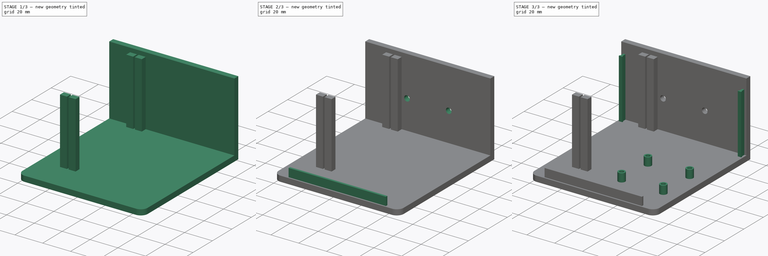
[diagram: build sequence overview — one tinted view per stage of 3, left to right]
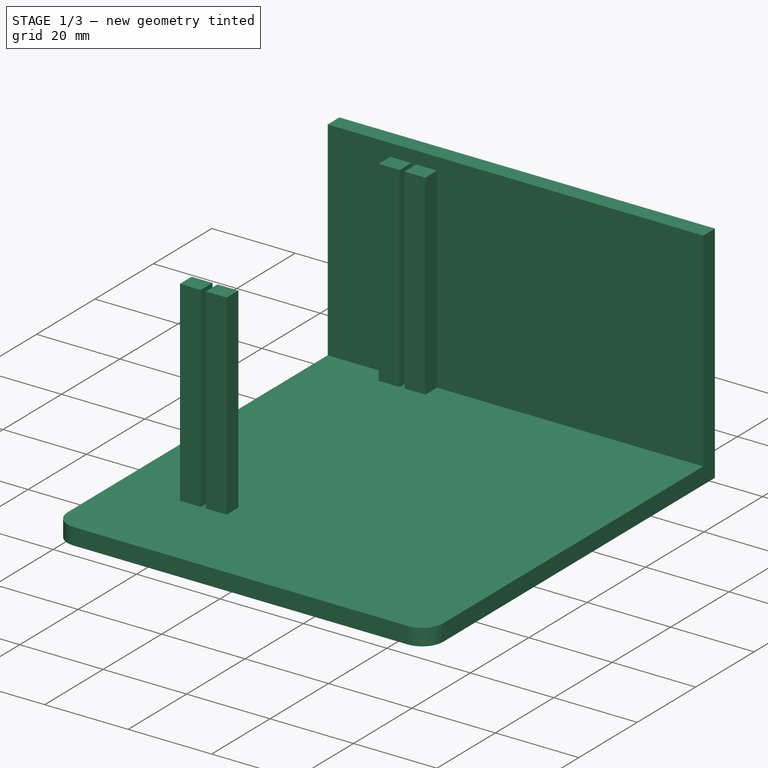
[diagram: stage 1 of 3 — iso view after this stage's code; geometry added in this stage tinted green]
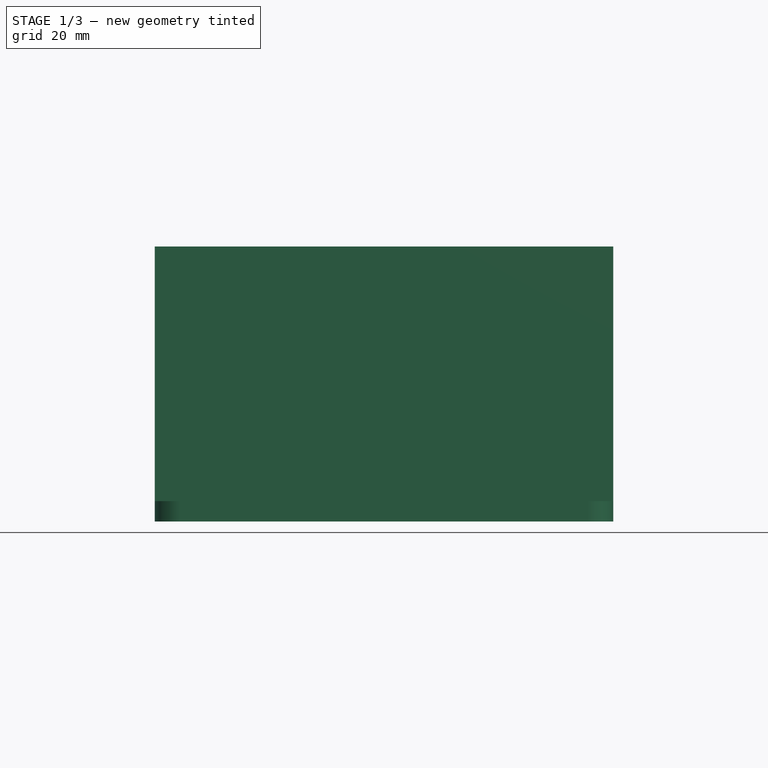
[diagram: stage 1 of 3 — front view after this stage's code; geometry added in this stage tinted green]
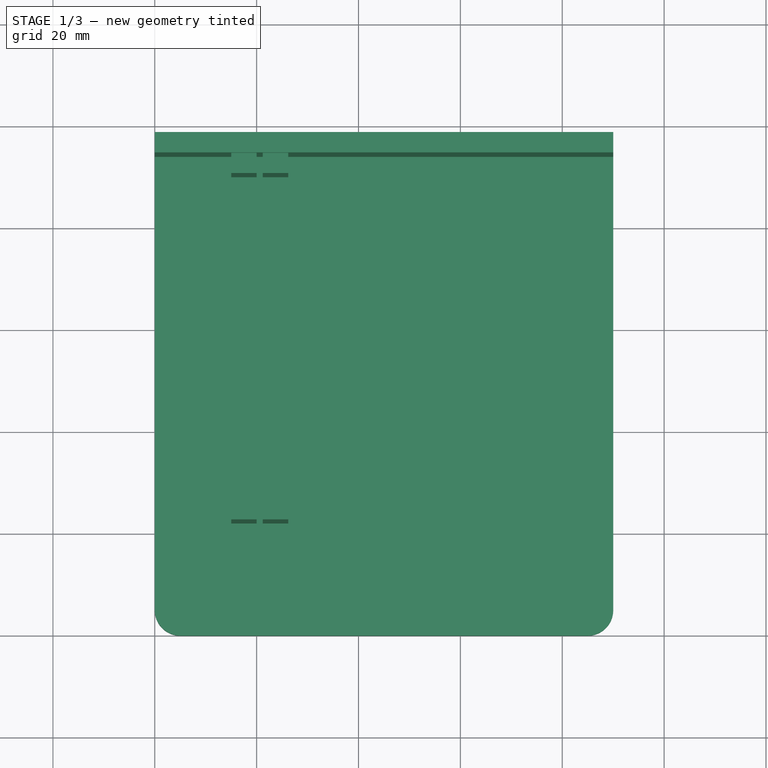
[diagram: stage 1 of 3 — top view after this stage's code; geometry added in this stage tinted green]
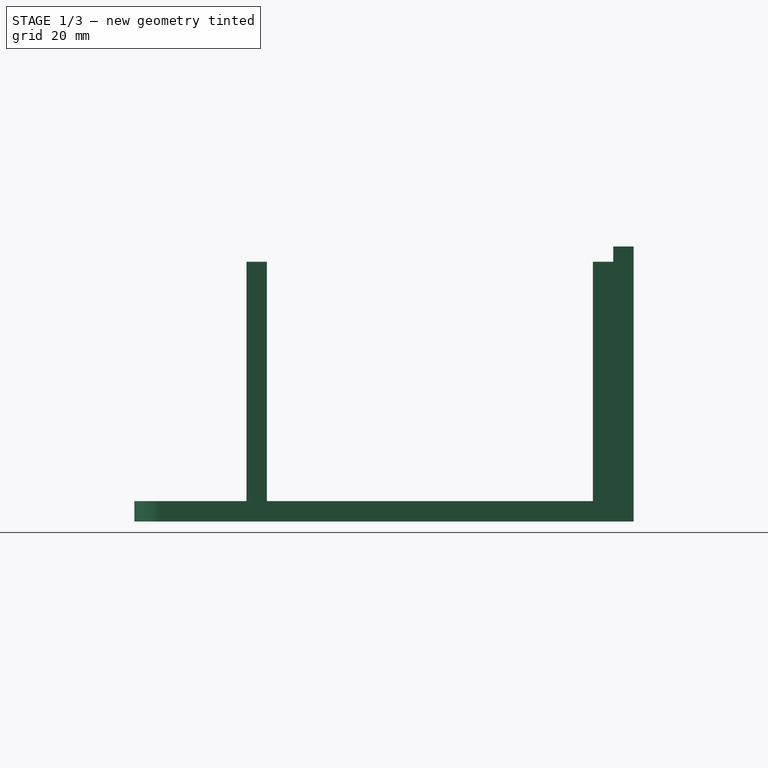
[diagram: stage 1 of 3 — right view after this stage's code; geometry added in this stage tinted green]
FCSTD DOCUMENT  (FreeCAD 1.0R38641 +468 (Git))
Label: focuser-box-base
License: All rights reserved
LicenseURL: https://en.wikipedia.org/wiki/All_rights_reserved
objects: Sketcher::SketchObject×8, PartDesign::Pad×6, PartDesign::Pocket×2, PartDesign::Body×1
note: 41 computed .brp shape members not serialized (recipe doc carries the construction recipe); baked Part::Feature solids carry a one-line shape summary decoded from their .brp

FEATURE [Sketcher::SketchObject] Sketch001  label="fb-base"
  ArcFitTolerance = 1e-06
  AttachmentSupport = -> [XY_Plane001]
  FullyConstrained = true
  MakeInternals = false
  MapMode = 5
  sketch-geometry (8):
    g0: LineSegment StartX=8.53e-14 StartY=94 StartZ=0 EndX=8.53e-14 EndY=5 EndZ=0
    g1: LineSegment StartX=5 StartY=8e-15 StartZ=0 EndX=85 EndY=8e-15 EndZ=0
    g2: LineSegment StartX=90 StartY=5 StartZ=0 EndX=90 EndY=94 EndZ=0
    g3: LineSegment StartX=90 StartY=94 StartZ=0 EndX=8.53e-14 EndY=94 EndZ=0
    g4: ArcOfCircle CenterX=5 CenterY=5 CenterZ=0 NormalX=0 NormalY=0 NormalZ=1 AngleXU=0 Radius=5 StartAngle=3.14159 EndAngle=4.71239
    g5: GeomPoint [constr] X=0 Y=-3.5e-15 Z=0
    g6: ArcOfCircle CenterX=85 CenterY=5 CenterZ=0 NormalX=0 NormalY=0 NormalZ=1 AngleXU=0 Radius=5 StartAngle=4.71239 EndAngle=6.28319
    g7: GeomPoint [constr] X=90 Y=-3.5e-15 Z=0
  constraints (20):
    c: Coincident(g2,g3)
    c: Coincident(g3,g0)
    c: Vertical(g0)
    c: Vertical(g2)
    c: Horizontal(g1)
    c: Horizontal(g3)
    c: Distance(g0,g2) = 90
    c: Distance(g5,g3) = 94
    c: PointOnObject(g5,g0)
    c: PointOnObject(g5,g1)
    c: Tangent(g0,g4) = -1.5708
    c: Tangent(g1,g4) = -1.5708
    c: PointOnObject(g7,g1)
    c: PointOnObject(g7,g2)
    c: Tangent(g1,g6) = -1.5708
    c: Tangent(g2,g6) = -1.5708
    c: DistanceX(g0,g4) = 5
    c: DistanceX(g6,g2) = 5
    c: DistanceX(g-1,g0) = 0
    c: DistanceY(g-1,g0) = 94
FEATURE [PartDesign::Pad] Pad
  Direction = (0,0,1)
  Length = 4
  Length2 = 10
  Profile = -> Sketch001
  ReferenceAxis = -> Sketch001 [N_Axis]
  Refine = true
  Suppressed = false
  Type = 0
FEATURE [Sketcher::SketchObject] Sketch002  label="fb-card-holder"
  ArcFitTolerance = 1e-06
  AttachmentSupport = -> [XY_Plane001]
  FullyConstrained = true
  MakeInternals = false
  MapMode = 5
  sketch-geometry (16):
    g0: LineSegment StartX=20 StartY=94 StartZ=0 EndX=15 EndY=94 EndZ=0
    g1: LineSegment StartX=15 StartY=94 StartZ=0 EndX=15 EndY=90 EndZ=0
    g2: LineSegment StartX=15 StartY=90 StartZ=0 EndX=20 EndY=90 EndZ=0
    g3: LineSegment StartX=20 StartY=90 StartZ=0 EndX=20 EndY=94 EndZ=0
    g4: LineSegment StartX=15 StartY=26 StartZ=0 EndX=20 EndY=26 EndZ=0
    g5: LineSegment StartX=20 StartY=26 StartZ=0 EndX=20 EndY=22 EndZ=0
    g6: LineSegment StartX=20 StartY=22 StartZ=0 EndX=15 EndY=22 EndZ=0
    g7: LineSegment StartX=15 StartY=22 StartZ=0 EndX=15 EndY=26 EndZ=0
    g8: LineSegment StartX=26.2 StartY=94 StartZ=0 EndX=21.2 EndY=94 EndZ=0
    g9: LineSegment StartX=21.2 StartY=94 StartZ=0 EndX=21.2 EndY=90 EndZ=0
    g10: LineSegment StartX=21.2 StartY=90 StartZ=0 EndX=26.2 EndY=90 EndZ=0
    g11: LineSegment StartX=26.2 StartY=90 StartZ=0 EndX=26.2 EndY=94 EndZ=0
    g12: LineSegment StartX=26.2 StartY=26 StartZ=0 EndX=21.2 EndY=26 EndZ=0
    g13: LineSegment StartX=21.2 StartY=26 StartZ=0 EndX=21.2 EndY=22 EndZ=0
    g14: LineSegment StartX=21.2 StartY=22 StartZ=0 EndX=26.2 EndY=22 EndZ=0
    g15: LineSegment StartX=26.2 StartY=22 StartZ=0 EndX=26.2 EndY=26 EndZ=0
  constraints (48):
    c: Coincident(g0,g1)
    c: Coincident(g1,g2)
    c: Coincident(g2,g3)
    c: Coincident(g3,g0)
    c: Horizontal(g0)
    c: Horizontal(g2)
    c: Vertical(g1)
    c: Vertical(g3)
    c: Distance(g1,g3) = 5
    c: Distance(g0,g2) = 4
    c: DistanceX(g-1,g1) = 15
    c: Coincident(g4,g5)
    c: Coincident(g5,g6)
    c: Coincident(g6,g7)
    c: Coincident(g7,g4)
    c: Horizontal(g4)
    c: Horizontal(g6)
    c: Vertical(g5)
    c: Vertical(g7)
    c: Distance(g5,g7) = 5
    c: Distance(g4,g6) = 4
    c: DistanceX(g6,g1) = 0
    c: DistanceY(g-1,g6) = 22
    c: Coincident(g8,g9)
    c: Coincident(g9,g10)
    c: Coincident(g10,g11)
    c: Coincident(g11,g8)
    c: Horizontal(g8)
    c: Horizontal(g10)
    c: Vertical(g9)
    c: Vertical(g11)
    c: Distance(g9,g11) = 5
    c: Distance(g8,g10) = 4
    c: Coincident(g12,g13)
    c: Coincident(g13,g14)
    c: Coincident(g14,g15)
    c: Coincident(g15,g12)
    c: Horizontal(g12)
    c: Horizontal(g14)
    c: Vertical(g13)
    c: Vertical(g15)
    c: Distance(g13,g15) = 5
    c: Distance(g12,g14) = 4
    c: DistanceY(g10,g2) = 0
    c: DistanceY(g5,g14) = 0
    c: DistanceX(g0,g8) = 1.2
    c: Distance(g4,g12) = 1.2
    c: DistanceY(g4,g1) = 64
FEATURE [Sketcher::SketchObject] Sketch003  label="fb-back-wall"
  ArcFitTolerance = 1e-06
  AttachmentSupport = -> [XY_Plane001]
  FullyConstrained = true
  MakeInternals = false
  MapMode = 5
  sketch-geometry (4):
    g0: LineSegment StartX=0 StartY=98 StartZ=0 EndX=0 EndY=94 EndZ=0
    g1: LineSegment StartX=0 StartY=94 StartZ=0 EndX=90 EndY=94 EndZ=0
    g2: LineSegment StartX=90 StartY=94 StartZ=0 EndX=90 EndY=98 EndZ=0
    g3: LineSegment StartX=90 StartY=98 StartZ=0 EndX=0 EndY=98 EndZ=0
  constraints (12):
    c: Coincident(g0,g1)
    c: Coincident(g1,g2)
    c: Coincident(g2,g3)
    c: Coincident(g3,g0)
    c: Vertical(g0)
    c: Vertical(g2)
    c: Horizontal(g1)
    c: Horizontal(g3)
    c: Distance(g0,g2) = 90
    c: Distance(g1,g3) = 4
    c: DistanceY(g-1,g0) = 94
    c: DistanceX(g-1,g0) = 0
FEATURE [PartDesign::Pad] Pad001
  BaseFeature = -> Pad
  Direction = (0,0,1)
  Length = 54
  Length2 = 10
  Profile = -> Sketch003
  ReferenceAxis = -> Sketch003 [N_Axis]
  Refine = true
  Suppressed = false
  Type = 0
FEATURE [PartDesign::Pad] Pad002
  BaseFeature = -> Pad001
  Direction = (0,0,1)
  Length = 51
  Length2 = 10
  Profile = -> Sketch002
  ReferenceAxis = -> Sketch002 [N_Axis]
  Refine = true
  Suppressed = false
  Type = 0
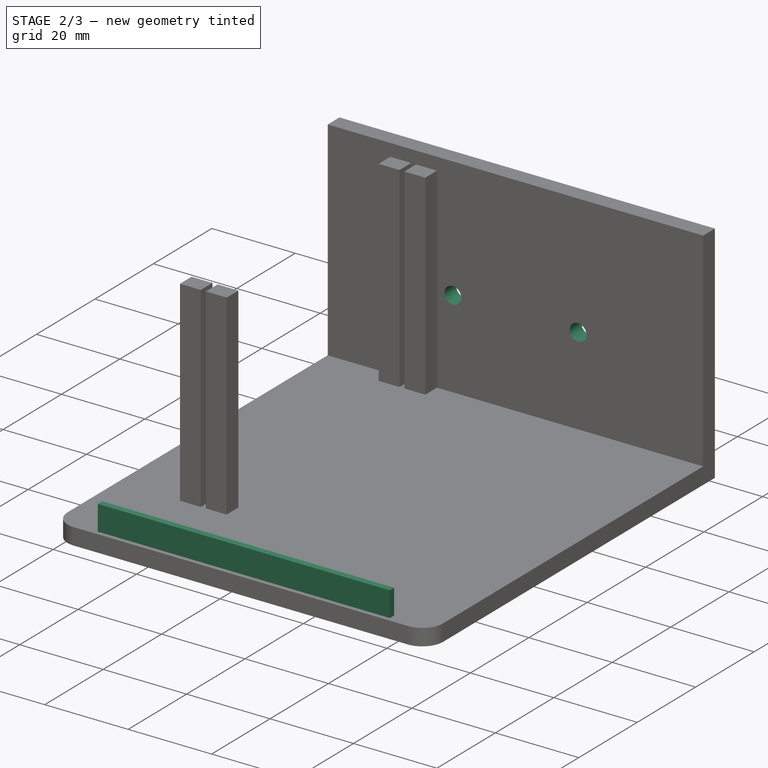
[diagram: stage 2 of 3 — iso view after this stage's code; geometry added in this stage tinted green]
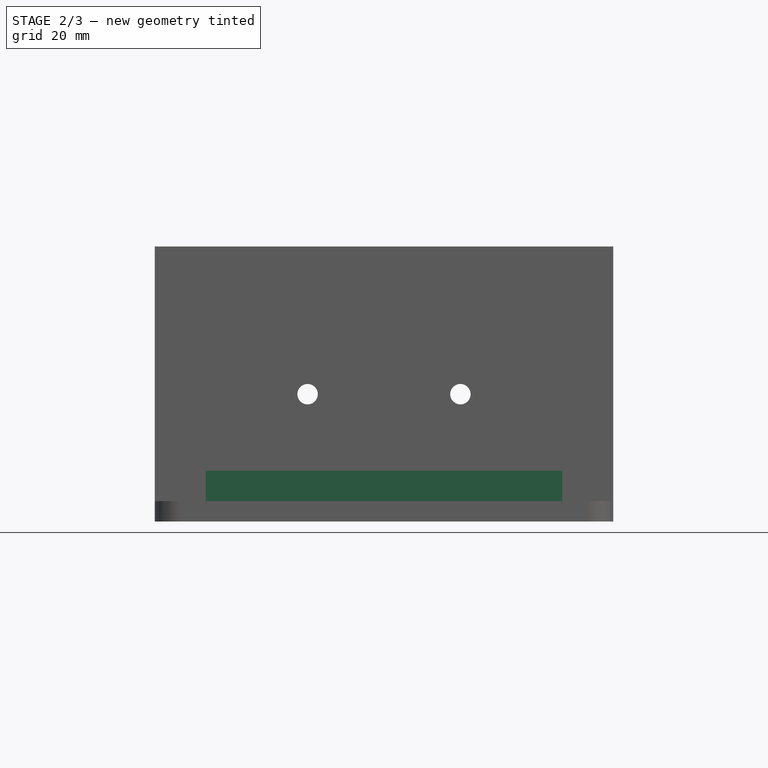
[diagram: stage 2 of 3 — front view after this stage's code; geometry added in this stage tinted green]
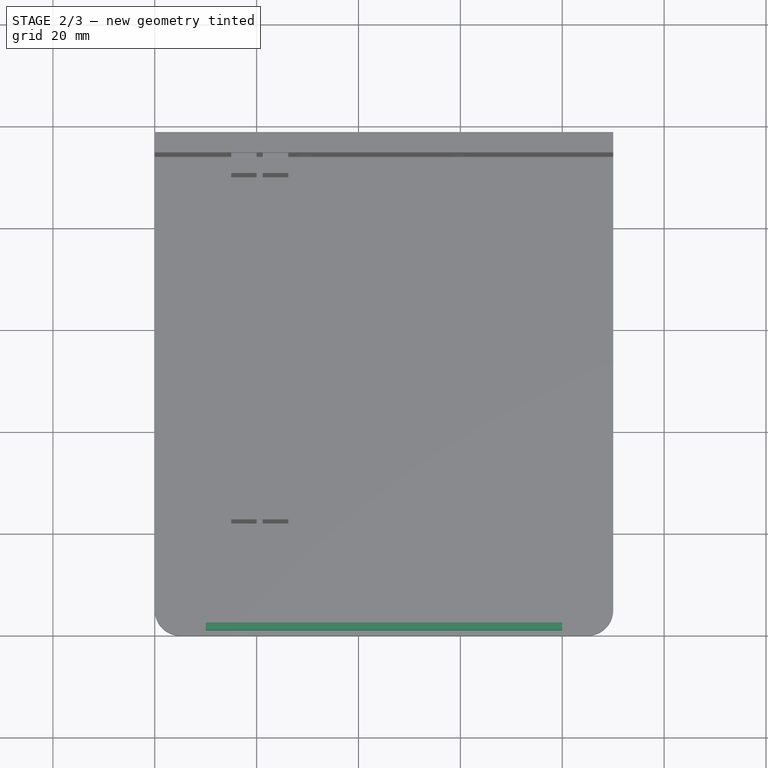
[diagram: stage 2 of 3 — top view after this stage's code; geometry added in this stage tinted green]
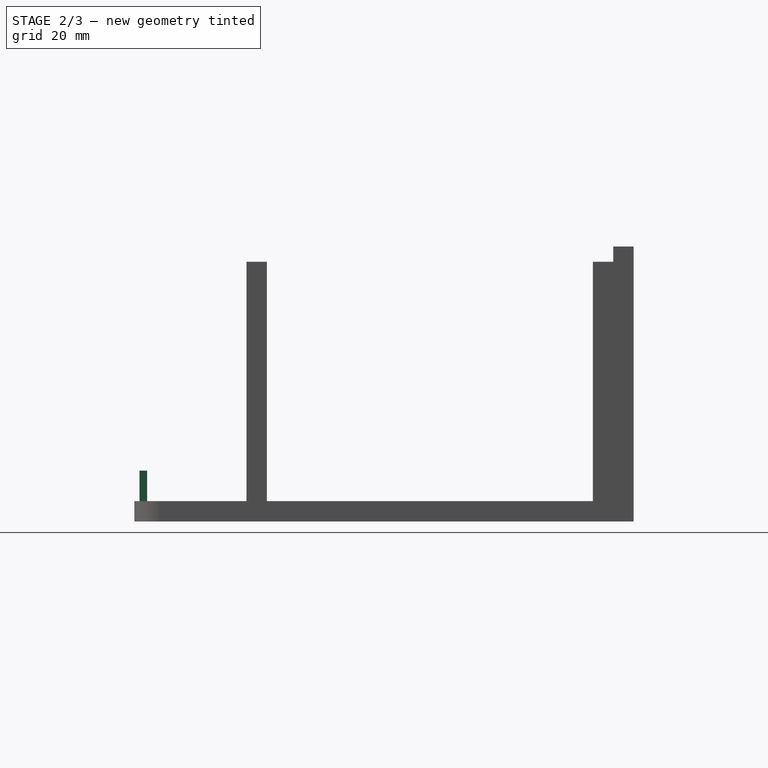
[diagram: stage 2 of 3 — right view after this stage's code; geometry added in this stage tinted green]
FEATURE [Sketcher::SketchObject] Sketch004  label="back-trails"
  ArcFitTolerance = 1e-06
  AttachmentSupport = -> [XY_Plane001]
  FullyConstrained = true
  MakeInternals = false
  MapMode = 5
  sketch-geometry (16):
    g0: LineSegment StartX=1.5 StartY=94 StartZ=0 EndX=1.5 EndY=91 EndZ=0
    g1: LineSegment StartX=1.5 StartY=91 StartZ=0 EndX=3 EndY=91 EndZ=0
    g2: LineSegment StartX=3 StartY=91 StartZ=0 EndX=3 EndY=94 EndZ=0
    g3: LineSegment StartX=3 StartY=94 StartZ=0 EndX=1.5 EndY=94 EndZ=0
    g4: LineSegment StartX=3.5 StartY=91 StartZ=0 EndX=1 EndY=91 EndZ=0
    g5: LineSegment StartX=1 StartY=91 StartZ=0 EndX=1 EndY=90.1 EndZ=0
    g6: LineSegment StartX=1 StartY=90.1 StartZ=0 EndX=3.5 EndY=90.1 EndZ=0
    g7: LineSegment StartX=3.5 StartY=90.1 StartZ=0 EndX=3.5 EndY=91 EndZ=0
    g8: LineSegment StartX=88.5 StartY=94 StartZ=0 EndX=87 EndY=94 EndZ=0
    g9: LineSegment StartX=87 StartY=94 StartZ=0 EndX=87 EndY=91 EndZ=0
    g10: LineSegment StartX=87 StartY=91 StartZ=0 EndX=88.5 EndY=91 EndZ=0
    g11: LineSegment StartX=88.5 StartY=91 StartZ=0 EndX=88.5 EndY=94 EndZ=0
    g12: LineSegment StartX=89 StartY=91 StartZ=0 EndX=86.5 EndY=91 EndZ=0
    g13: LineSegment StartX=86.5 StartY=91 StartZ=0 EndX=86.5 EndY=90.1 EndZ=0
    g14: LineSegment StartX=86.5 StartY=90.1 StartZ=0 EndX=89 EndY=90.1 EndZ=0
    g15: LineSegment StartX=89 StartY=90.1 StartZ=0 EndX=89 EndY=91 EndZ=0
  constraints (48):
    c: Coincident(g0,g1)
    c: Coincident(g1,g2)
    c: Coincident(g2,g3)
    c: Coincident(g3,g0)
    c: Vertical(g0)
    c: Vertical(g2)
    c: Horizontal(g1)
    c: Horizontal(g3)
    c: Distance(g0,g2) = 1.5
    c: Distance(g1,g3) = 3
    c: Coincident(g4,g5)
    c: Coincident(g5,g6)
    c: Coincident(g6,g7)
    c: Coincident(g7,g4)
    c: Horizontal(g4)
    c: Horizontal(g6)
    c: Vertical(g5)
    c: Vertical(g7)
    c: Distance(g5,g7) = 2.5
    c: Distance(g4,g6) = 0.9
    c: DistanceX(g1,g4) = 0.5
    c: DistanceY(g4,g1) = 0
    c: DistanceY(g-1,g0) = 94
    c: DistanceX(g-1,g5) = 1
    c: Coincident(g8,g9)
    c: Coincident(g9,g10)
    c: Coincident(g10,g11)
    c: Coincident(g11,g8)
    c: Horizontal(g8)
    c: Horizontal(g10)
    c: Vertical(g9)
    c: Vertical(g11)
    c: Distance(g9,g11) = 1.5
    c: Distance(g8,g10) = 3
    c: Coincident(g12,g13)
    c: Coincident(g13,g14)
    c: Coincident(g14,g15)
    c: Coincident(g15,g12)
    c: Horizontal(g12)
    c: Horizontal(g14)
    c: Vertical(g13)
    c: Vertical(g15)
    c: Distance(g13,g15) = 2.5
    c: Distance(g12,g14) = 0.9
    c: DistanceX(g10,g12) = 0.5
    c: DistanceY(g12,g10) = 0
    c: DistanceY(g6,g13) = 0
    c: DistanceX(g-1,g14) = 89
FEATURE [Sketcher::SketchObject] Sketch005  label="front-wall"
  ArcFitTolerance = 1e-06
  AttachmentSupport = -> [XY_Plane001]
  FullyConstrained = true
  MakeInternals = false
  MapMode = 5
  sketch-geometry (4):
    g0: LineSegment StartX=10 StartY=2.5 StartZ=0 EndX=10 EndY=1 EndZ=0
    g1: LineSegment StartX=10 StartY=1 StartZ=0 EndX=80 EndY=1 EndZ=0
    g2: LineSegment StartX=80 StartY=1 StartZ=0 EndX=80 EndY=2.5 EndZ=0
    g3: LineSegment StartX=80 StartY=2.5 StartZ=0 EndX=10 EndY=2.5 EndZ=0
  constraints (12):
    c: Coincident(g0,g1)
    c: Coincident(g1,g2)
    c: Coincident(g2,g3)
    c: Coincident(g3,g0)
    c: Vertical(g0)
    c: Vertical(g2)
    c: Horizontal(g1)
    c: Horizontal(g3)
    c: Distance(g0,g2) = 70
    c: Distance(g1,g3) = 1.5
    c: DistanceX(g-1,g0) = 10
    c: DistanceY(g-1,g0) = 1
FEATURE [Sketcher::SketchObject] Sketch006  label="back-holes"
  ArcFitTolerance = 1e-06
  FullyConstrained = true
  MakeInternals = false
  MapMode = 5
  Placement = pos=(0,84,0) rot=(0,0.707107,0.707107;3.14159rad)
  sketch-geometry (2):
    g0: Circle CenterX=-30 CenterY=25 CenterZ=0 NormalX=0 NormalY=0 NormalZ=1 AngleXU=0 Radius=2
    g1: Circle CenterX=-60 CenterY=25 CenterZ=0 NormalX=0 NormalY=0 NormalZ=1 AngleXU=0 Radius=2
  constraints (6):
    c: Diameter(g0) = 4
    c: Diameter(g1) = 4
    c: DistanceY(g-1,g0) = 25
    c: DistanceX(g0,g-1) = 30
    c: DistanceX(g1,g0) = 30
    c: DistanceY(g0,g1) = 0
FEATURE [PartDesign::Pocket] Pocket
  BaseFeature = -> Pad002
  Direction = (-1e-16,-1,2e-16)
  Length = 5
  Length2 = 5
  Midplane = true
  Profile = -> Sketch006
  ReferenceAxis = -> Sketch006 [N_Axis]
  Refine = true
  Suppressed = false
  Type = 1
FEATURE [PartDesign::Pad] Pad003
  BaseFeature = -> Pocket
  Direction = (0,0,1)
  Length = 10
  Length2 = 10
  Profile = -> Sketch005
  ReferenceAxis = -> Sketch005 [N_Axis]
  Refine = true
  Suppressed = false
  Type = 0
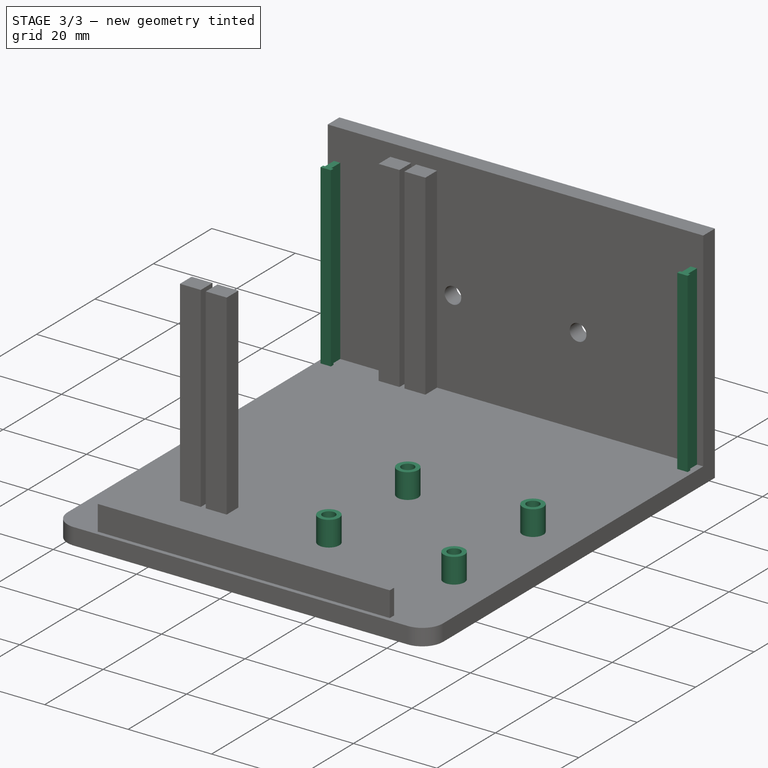
[diagram: stage 3 of 3 — iso view after this stage's code; geometry added in this stage tinted green]
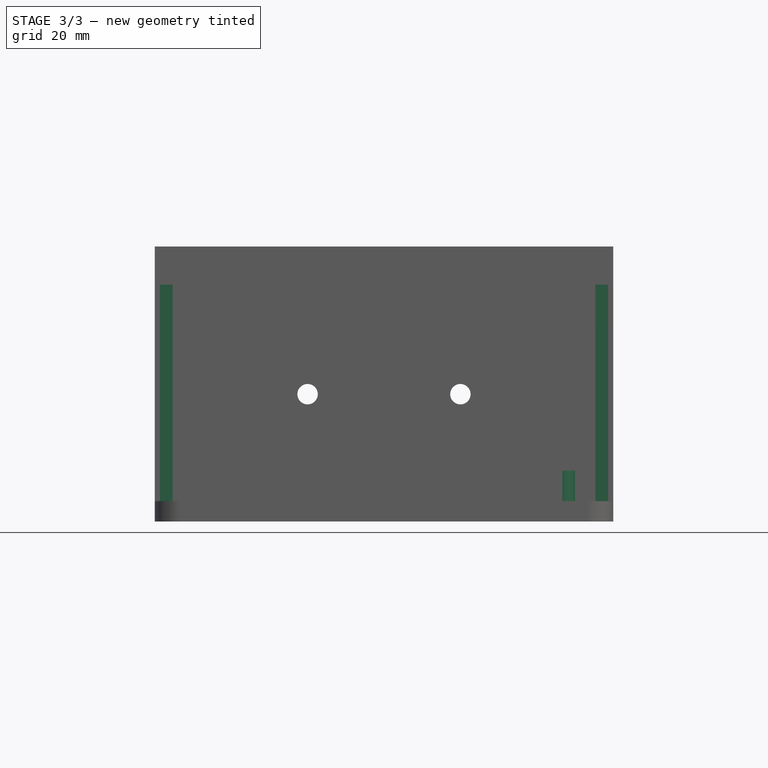
[diagram: stage 3 of 3 — front view after this stage's code; geometry added in this stage tinted green]
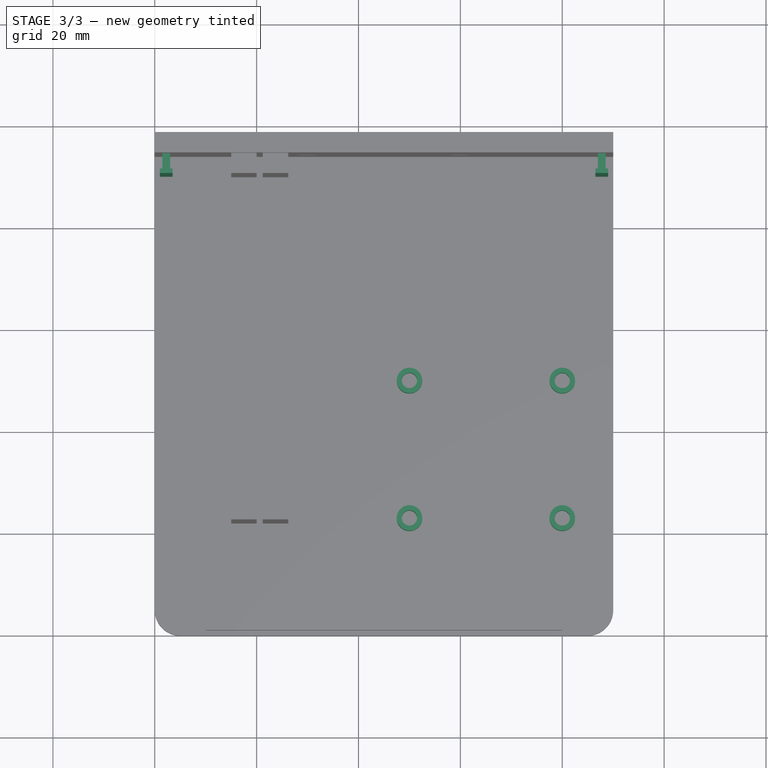
[diagram: stage 3 of 3 — top view after this stage's code; geometry added in this stage tinted green]
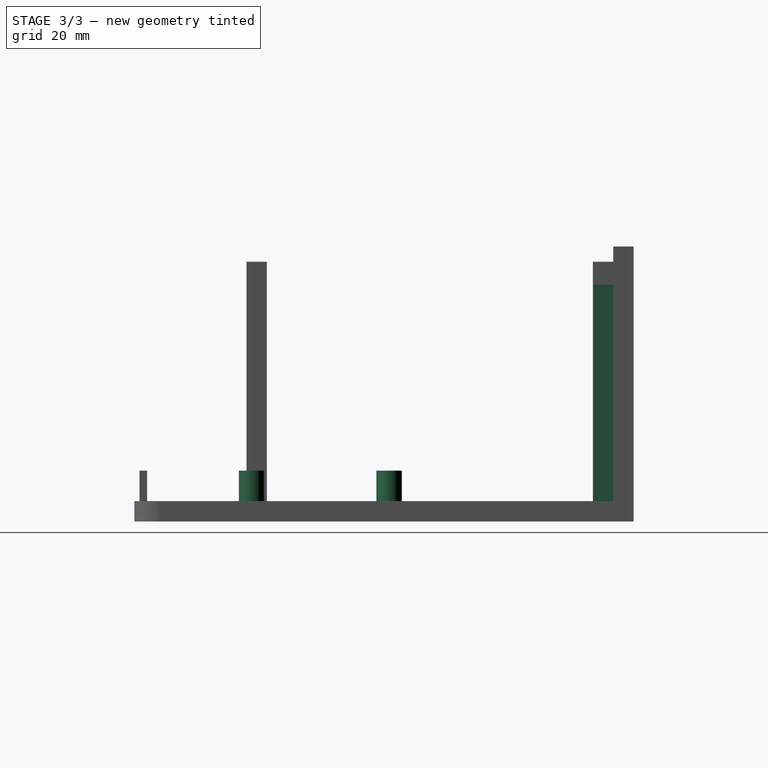
[diagram: stage 3 of 3 — right view after this stage's code; geometry added in this stage tinted green]
FEATURE [PartDesign::Pad] Pad004
  BaseFeature = -> Pad003
  Direction = (0,0,1)
  Length = 46.5
  Length2 = 10
  Profile = -> Sketch004
  ReferenceAxis = -> Sketch004 [N_Axis]
  Refine = true
  Suppressed = false
  Type = 0
FEATURE [Sketcher::SketchObject] Sketch  label="fb-driver-holder"
  ArcFitTolerance = 1e-06
  AttachmentSupport = -> [XY_Plane001]
  FullyConstrained = true
  MakeInternals = false
  MapMode = 5
  sketch-geometry (4):
    g0: Circle CenterX=80 CenterY=50 CenterZ=0 NormalX=0 NormalY=0 NormalZ=1 AngleXU=0 Radius=2.5
    g1: Circle CenterX=80 CenterY=23 CenterZ=0 NormalX=0 NormalY=0 NormalZ=1 AngleXU=0 Radius=2.5
    g2: Circle CenterX=50 CenterY=50 CenterZ=0 NormalX=0 NormalY=0 NormalZ=1 AngleXU=0 Radius=2.5
    g3: Circle CenterX=50 CenterY=23 CenterZ=0 NormalX=0 NormalY=0 NormalZ=1 AngleXU=0 Radius=2.5
  constraints (12):
    c: Diameter(g0) = 5
    c: DistanceX(g-1,g0) = 80
    c: DistanceY(g-1,g0) = 50
    c: Diameter(g1) = 5
    c: DistanceX(g1,g0) = 0
    c: DistanceY(g1,g0) = 27
    c: Diameter(g2) = 5
    c: Diameter(g3) = 5
    c: DistanceX(g2,g0) = 30
    c: DistanceX(g3,g1) = 30
    c: DistanceY(g2,g0) = 0
    c: DistanceY(g1,g3) = 0
FEATURE [PartDesign::Pad] Pad005
  BaseFeature = -> Pad004
  Direction = (0,0,1)
  Length = 10
  Length2 = 10
  Profile = -> Sketch
  ReferenceAxis = -> Sketch [N_Axis]
  Refine = true
  Suppressed = false
  Type = 0
FEATURE [Sketcher::SketchObject] Sketch007
  ArcFitTolerance = 1e-06
  FullyConstrained = true
  MakeInternals = false
  MapMode = 5
  sketch-geometry (4):
    g0: Circle CenterX=80 CenterY=50 CenterZ=0 NormalX=0 NormalY=0 NormalZ=1 AngleXU=0 Radius=1.5
    g1: Circle CenterX=80 CenterY=23 CenterZ=0 NormalX=0 NormalY=0 NormalZ=1 AngleXU=0 Radius=1.5
    g2: Circle CenterX=50 CenterY=50 CenterZ=0 NormalX=0 NormalY=0 NormalZ=1 AngleXU=0 Radius=1.5
    g3: Circle CenterX=50 CenterY=23 CenterZ=0 NormalX=0 NormalY=0 NormalZ=1 AngleXU=0 Radius=1.5
  constraints (12):
    c: Diameter(g0) = 3
    c: DistanceX(g-1,g0) = 80
    c: DistanceY(g-1,g0) = 50
    c: Diameter(g1) = 3
    c: DistanceX(g1,g0) = 0
    c: DistanceY(g1,g0) = 27
    c: Diameter(g2) = 3
    c: Diameter(g3) = 3
    c: DistanceX(g2,g0) = 30
    c: DistanceX(g3,g1) = 30
    c: DistanceY(g2,g0) = 0
    c: DistanceY(g1,g3) = 0
FEATURE [PartDesign::Pocket] Pocket001
  BaseFeature = -> Pad005
  Direction = (0,0,-1)
  Length = 24
  Length2 = -4
  Profile = -> Sketch007
  ReferenceAxis = -> Sketch007 [N_Axis]
  Refine = true
  Reversed = true
  Suppressed = false
  Type = 4
FEATURE [PartDesign::Body] Body001  label="fb-base-part"
  AllowCompound = false
  Group = -> [Sketch001,Sketch002,Sketch003,Sketch004,Sketch005,Sketch006,Pad,Pad001,Pad002,Pocket,Pad003,Pad004,Sketch,Pad005,Sketch007,Pocket001]
  Origin = -> Origin001
  Tip = -> Pocket001
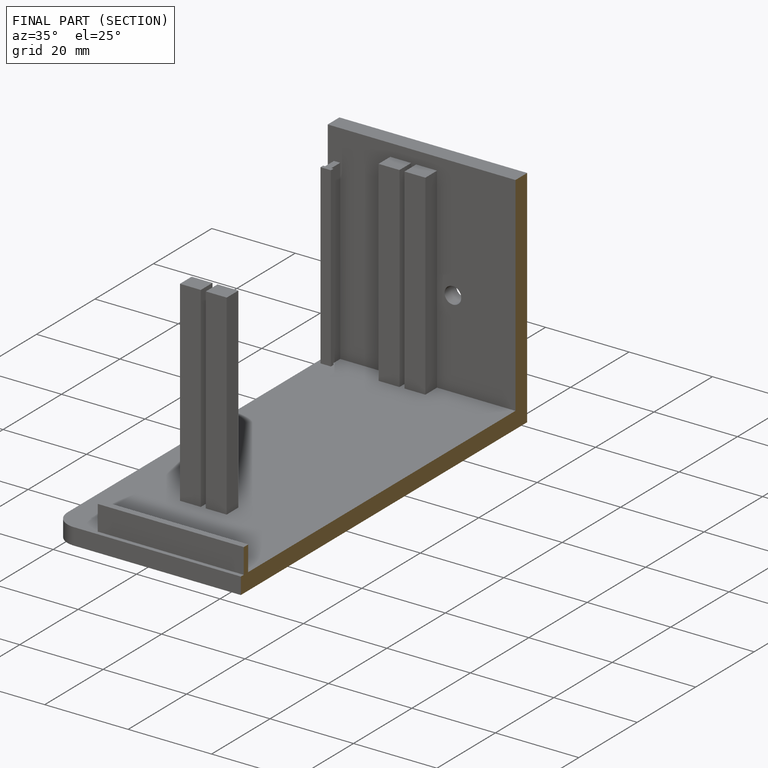
[diagram: finished part — half-section view (interior)]
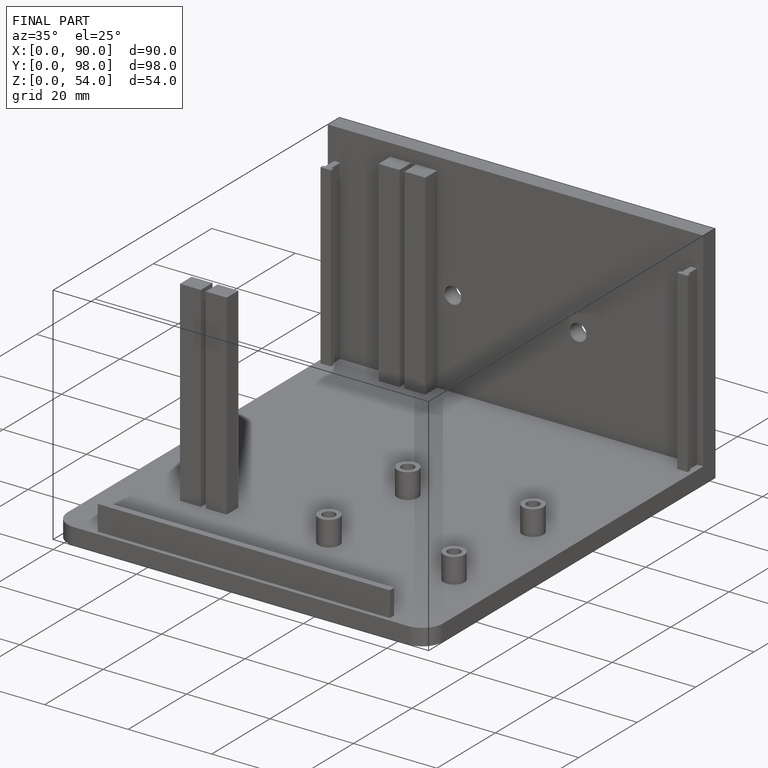
[diagram: finished part — iso view with bounding-box wireframe]
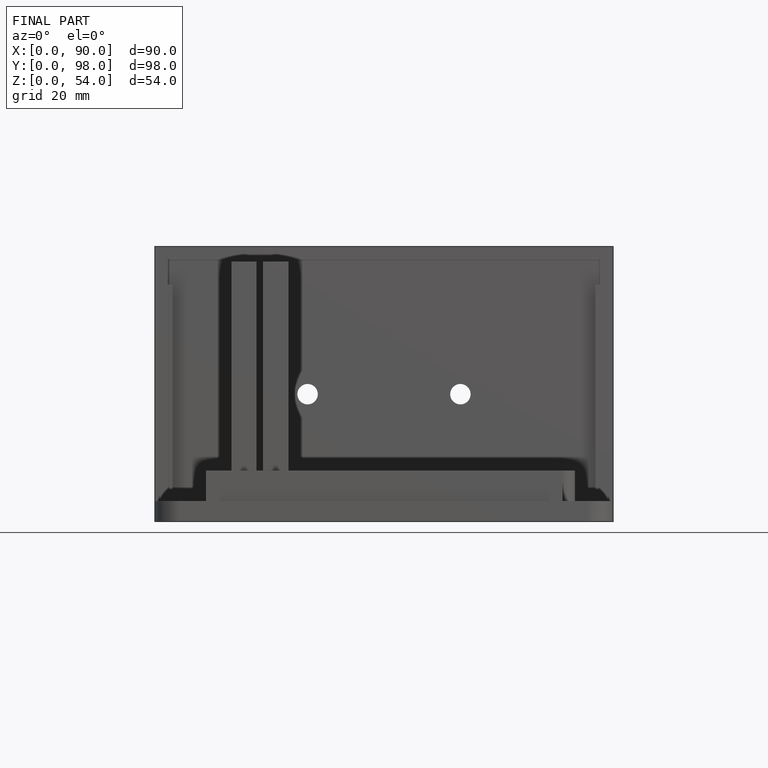
[diagram: finished part — front view with bounding-box wireframe]
